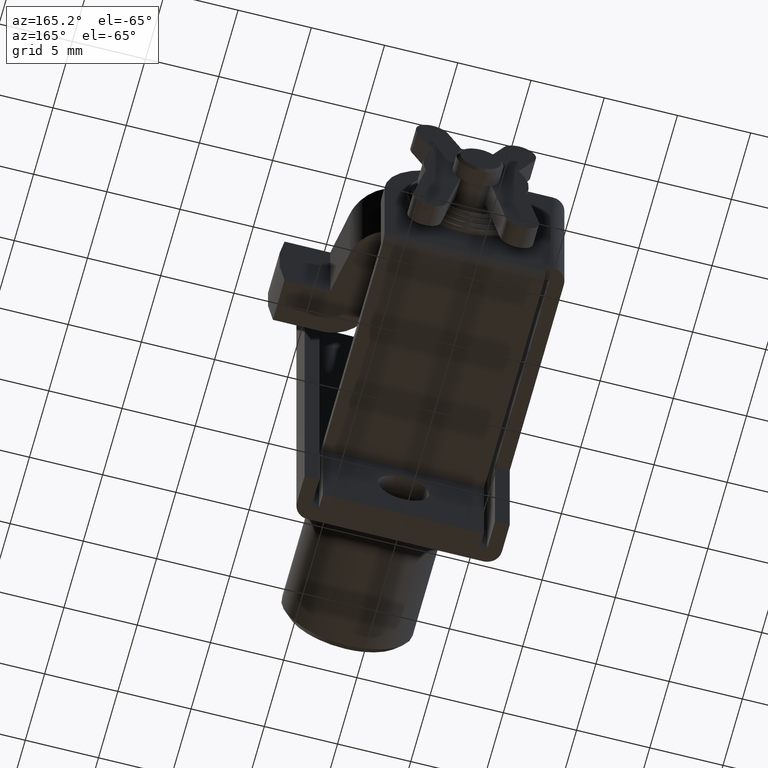
[diagram: clean part render]
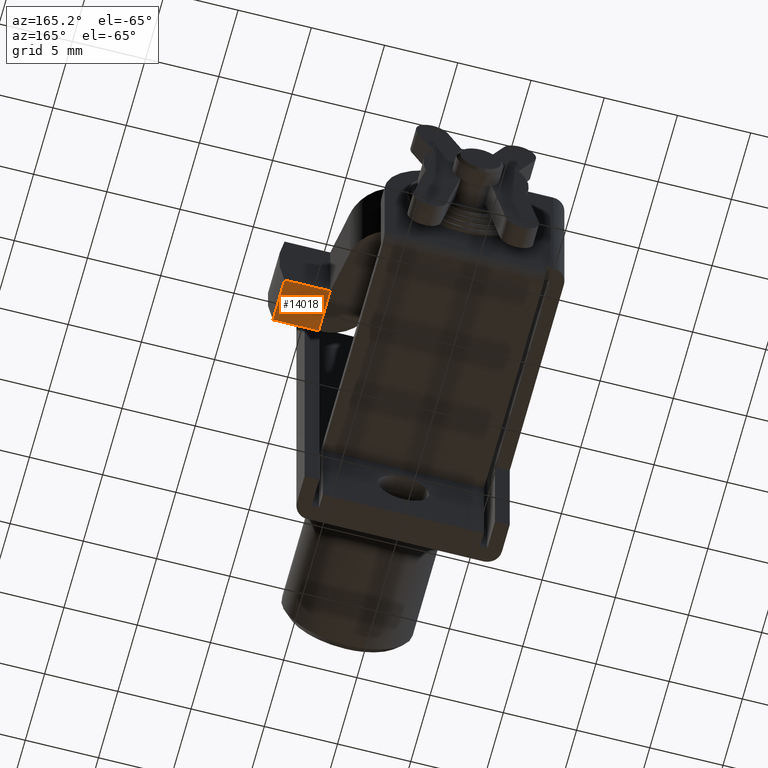
[diagram: same view with one face highlighted and labeled with its STEP entity id]
A machine part, auxiliary view. The second image highlights one B-rep face of the part: STEP entity #14018.
In plain terms, the highlighted face is a freeform B-spline surface patch.
Its self-contained STEP definition (entity closure, byte-faithful):
#13983=CARTESIAN_POINT('',(8.350150005814582,-7.344208462759027,-3.000000000000130));
#13984=CARTESIAN_POINT('',(11.649850074651690,-7.344208462759027,-3.000000000000130));
#13985=CARTESIAN_POINT('',(8.350150005814582,-10.774741436435360,-3.000000000000130));
#13986=CARTESIAN_POINT('',(11.649850074651690,-10.774741436435360,-3.000000000000130));
#13987=B_SPLINE_SURFACE_WITH_KNOTS('',1,1,((#13983,#13985),(#13984,#13986)),.UNSPECIFIED.,.F.,.F.,.U.,(2,2),(2,2),(0.0,3.299700068837106),(0.0,3.430532973676335),.UNSPECIFIED.);
#13988=CARTESIAN_POINT('',(8.500000000000000,-10.618950038622319,-3.000000000000130));
#13989=VERTEX_POINT('',#13988);
#13990=CARTESIAN_POINT('',(11.500000000000000,-10.618950038622319,-3.000000000000130));
#13991=VERTEX_POINT('',#13990);
#13992=CARTESIAN_POINT('',(8.500000000000000,-10.618950038622319,-3.000000000000130));
#13993=CARTESIAN_POINT('',(11.500000000000000,-10.618950038622319,-3.000000000000130));
#13994=QUASI_UNIFORM_CURVE('',1,(#13992,#13993),.UNSPECIFIED.,.F.,.U.);
#13995=EDGE_CURVE('',#13989,#13991,#13994,.T.);
#13996=ORIENTED_EDGE('',*,*,#13995,.F.);
#13997=CARTESIAN_POINT('',(8.500000000000000,-7.500000000000110,-3.000000000000130));
#13998=VERTEX_POINT('',#13997);
#13999=CARTESIAN_POINT('',(8.500000000000000,-7.500000000000110,-3.000000000000130));
#14000=CARTESIAN_POINT('',(8.500000000000000,-10.618950038622319,-3.000000000000130));
#14001=QUASI_UNIFORM_CURVE('',1,(#13999,#14000),.UNSPECIFIED.,.F.,.U.);
#14002=EDGE_CURVE('',#13998,#13989,#14001,.T.);
#14003=ORIENTED_EDGE('',*,*,#14002,.F.);
#14004=CARTESIAN_POINT('',(11.499999999999680,-7.500000000000000,-3.000000000000115));
#14005=VERTEX_POINT('',#14004);
#14006=CARTESIAN_POINT('',(8.500000000000000,-7.500000000000110,-3.000000000000130));
#14007=CARTESIAN_POINT('',(11.499999999999680,-7.500000000000000,-3.000000000000115));
#14008=QUASI_UNIFORM_CURVE('',1,(#14006,#14007),.UNSPECIFIED.,.F.,.U.);
#14009=EDGE_CURVE('',#13998,#14005,#14008,.T.);
#14010=ORIENTED_EDGE('',*,*,#14009,.T.);
#14011=CARTESIAN_POINT('',(11.500000000000000,-10.618950038622319,-3.000000000000130));
#14012=CARTESIAN_POINT('',(11.499999999999680,-7.500000000000000,-3.000000000000115));
#14013=QUASI_UNIFORM_CURVE('',1,(#14011,#14012),.UNSPECIFIED.,.F.,.U.);
#14014=EDGE_CURVE('',#13991,#14005,#14013,.T.);
#14015=ORIENTED_EDGE('',*,*,#14014,.F.);
#14016=EDGE_LOOP('',(#13996,#14003,#14010,#14015));
#14017=FACE_OUTER_BOUND('',#14016,.T.);
#14018=ADVANCED_FACE('',(#14017),#13987,.T.);